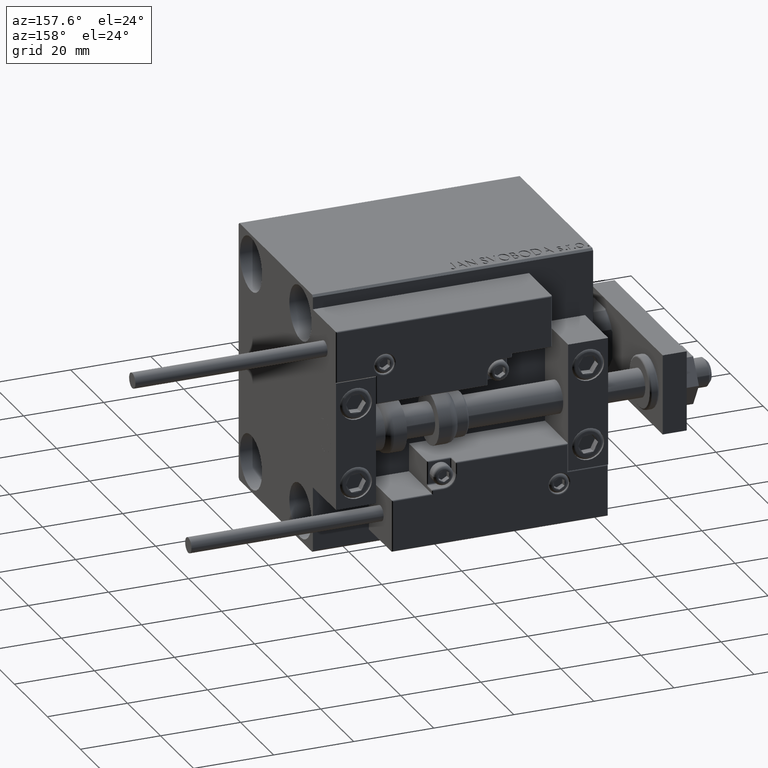
[diagram: clean part render]
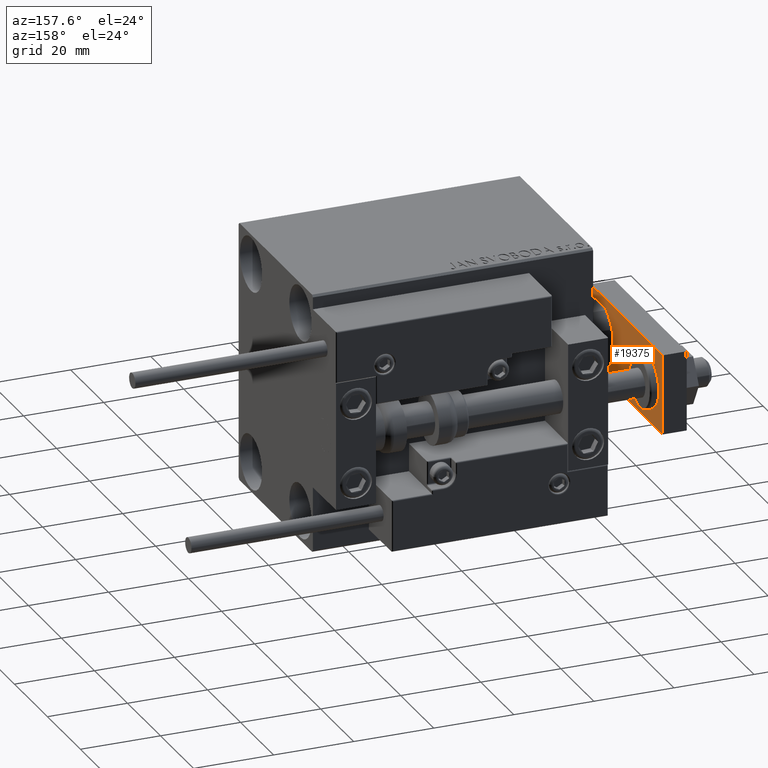
[diagram: same view with one face highlighted and labeled with its STEP entity id]
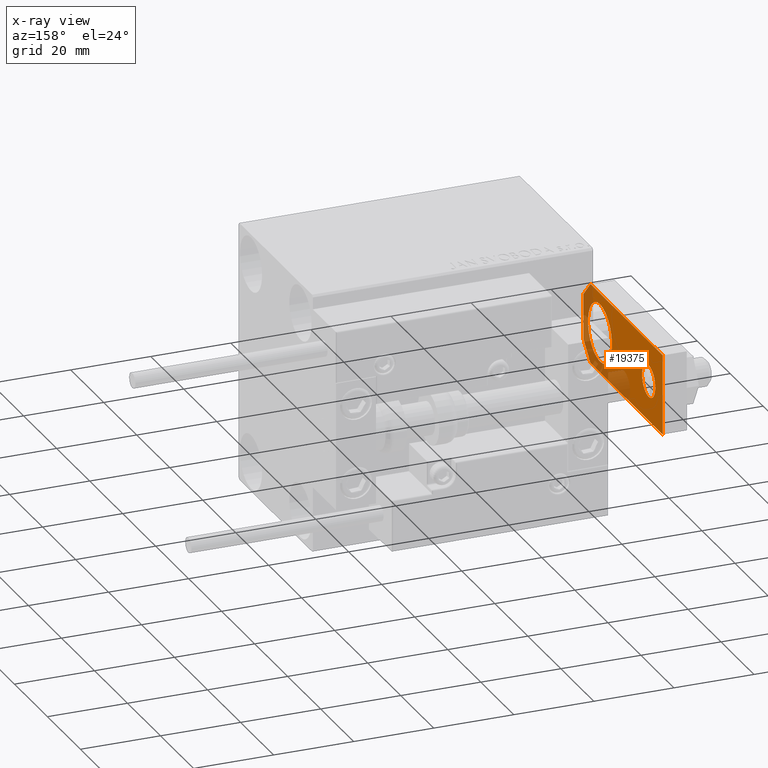
[diagram: x-ray of the same camera — body ghosted, the highlighted face saturated]
A machine part, auxiliary view. The second image highlights one B-rep face of the part: STEP entity #19375.
The next image is the same camera in x-ray: the body ghosted, the highlighted face saturated — about 22% of this face is hidden behind the body in this view.
In plain terms, the highlighted planar face has unit normal (-1, 0, 0).
Its self-contained STEP definition (entity closure, byte-faithful):
#2 = ORIENTED_EDGE ( 'NONE', *, *, #44342, .F. ) ;
#430 = DIRECTION ( 'NONE',  ( 1.000000000000000000, 0.000000000000000000, 0.000000000000000000 ) ) ;
#536 = CARTESIAN_POINT ( 'NONE',  ( 10.00000000000000533, 0.000000000000000000, 0.000000000000000000 ) ) ;
#682 = LINE ( 'NONE', #39623, #41058 ) ;
#685 = DIRECTION ( 'NONE',  ( 0.000000000000000000, 0.000000000000000000, 1.000000000000000000 ) ) ;
#1098 = ORIENTED_EDGE ( 'NONE', *, *, #2373, .T. ) ;
#1143 = DIRECTION ( 'NONE',  ( 1.000000000000000000, 0.000000000000000000, 0.000000000000000000 ) ) ;
#1740 = CARTESIAN_POINT ( 'NONE',  ( 10.00000000000000178, 48.00000000000000000, 0.000000000000000000 ) ) ;
#1789 = DIRECTION ( 'NONE',  ( 0.000000000000000000, 0.000000000000000000, 1.000000000000000000 ) ) ;
#2373 = EDGE_CURVE ( 'NONE', #22527, #31974, #34642, .T. ) ;
#4416 = VERTEX_POINT ( 'NONE', #7362 ) ;
#5549 = EDGE_CURVE ( 'NONE', #30517, #44071, #36603, .T. ) ;
#6729 = AXIS2_PLACEMENT_3D ( 'NONE', #9032, #48231, #1143 ) ;
#7362 = CARTESIAN_POINT ( 'NONE',  ( 10.00000000000000533, 4.239999999999986890, 0.000000000000000000 ) ) ;
#8096 = CARTESIAN_POINT ( 'NONE',  ( 5.759999999999998010, 0.000000000000000000, 0.000000000000000000 ) ) ;
#9032 = CARTESIAN_POINT ( 'NONE',  ( 0.000000000000000000, 0.000000000000000000, 0.000000000000000000 ) ) ;
#9452 = EDGE_CURVE ( 'NONE', #32639, #14585, #18575, .T. ) ;
#9787 = PLANE ( 'NONE',  #6729 ) ;
#11040 = ORIENTED_EDGE ( 'NONE', *, *, #9452, .T. ) ;
#12321 = VERTEX_POINT ( 'NONE', #38543 ) ;
#12497 = DIRECTION ( 'NONE',  ( -7.228014483236695816E-17, 1.000000000000000000, 0.000000000000000000 ) ) ;
#13683 = DIRECTION ( 'NONE',  ( 0.000000000000000000, 0.000000000000000000, 1.000000000000000000 ) ) ;
#14414 = EDGE_LOOP ( 'NONE', ( #43075, #1098 ) ) ;
#14585 = VERTEX_POINT ( 'NONE', #33088 ) ;
#14942 = AXIS2_PLACEMENT_3D ( 'NONE', #24632, #13683, #33009 ) ;
#15009 = VECTOR ( 'NONE', #12497, 1000.000000000000000 ) ;
#15205 = LINE ( 'NONE', #46244, #23959 ) ;
#15510 = CARTESIAN_POINT ( 'NONE',  ( -10.00000000000000000, 48.00000000000000000, 0.000000000000000000 ) ) ;
#15668 = ORIENTED_EDGE ( 'NONE', *, *, #38272, .T. ) ;
#17327 = CARTESIAN_POINT ( 'NONE',  ( -9.629649721936179265E-32, 10.00000000000000178, 0.000000000000000000 ) ) ;
#17830 = DIRECTION ( 'NONE',  ( 0.000000000000000000, 0.000000000000000000, 1.000000000000000000 ) ) ;
#18427 = DIRECTION ( 'NONE',  ( -1.084202172485504434E-16, -1.000000000000000000, 0.000000000000000000 ) ) ;
#18575 = CIRCLE ( 'NONE', #29942, 4.000000000000000888 ) ;
#19375 = ADVANCED_FACE ( 'NONE', ( #44402, #20993, #36512 ), #9787, .F. ) ;
#19695 = CIRCLE ( 'NONE', #14942, 4.000000000000000888 ) ;
#20890 = DIRECTION ( 'NONE',  ( 1.000000000000000000, 0.000000000000000000, 0.000000000000000000 ) ) ;
#20993 = FACE_BOUND ( 'NONE', #43346, .T. ) ;
#21312 = VERTEX_POINT ( 'NONE', #8096 ) ;
#21390 = EDGE_CURVE ( 'NONE', #14585, #32639, #19695, .T. ) ;
#21544 = CARTESIAN_POINT ( 'NONE',  ( -7.250000000000000000, 10.00000000000000178, 0.000000000000000000 ) ) ;
#22527 = VERTEX_POINT ( 'NONE', #28903 ) ;
#23088 = ORIENTED_EDGE ( 'NONE', *, *, #21390, .T. ) ;
#23959 = VECTOR ( 'NONE', #46998, 1000.000000000000000 ) ;
#24440 = VECTOR ( 'NONE', #28226, 1000.000000000000000 ) ;
#24443 = VERTEX_POINT ( 'NONE', #36062 ) ;
#24632 = CARTESIAN_POINT ( 'NONE',  ( -1.432611055310774642E-16, 39.50000000000000000, 0.000000000000000000 ) ) ;
#25013 = CARTESIAN_POINT ( 'NONE',  ( 10.00000000000000178, 48.00000000000000000, 0.000000000000000000 ) ) ;
#27545 = EDGE_CURVE ( 'NONE', #4416, #30517, #39735, .T. ) ;
#28226 = DIRECTION ( 'NONE',  ( -1.000000000000000000, 0.000000000000000000, 0.000000000000000000 ) ) ;
#28903 = CARTESIAN_POINT ( 'NONE',  ( 7.250000000000000000, 10.00000000000000355, 0.000000000000000000 ) ) ;
#29277 = CARTESIAN_POINT ( 'NONE',  ( -1.432611055310774642E-16, 39.50000000000000000, 0.000000000000000000 ) ) ;
#29942 = AXIS2_PLACEMENT_3D ( 'NONE', #29277, #1789, #33330 ) ;
#30517 = VERTEX_POINT ( 'NONE', #25013 ) ;
#31222 = CARTESIAN_POINT ( 'NONE',  ( -9.629649721936179265E-32, 10.00000000000000178, 0.000000000000000000 ) ) ;
#31419 = ORIENTED_EDGE ( 'NONE', *, *, #5549, .F. ) ;
#31546 = EDGE_CURVE ( 'NONE', #31974, #22527, #41108, .T. ) ;
#31974 = VERTEX_POINT ( 'NONE', #21544 ) ;
#32639 = VERTEX_POINT ( 'NONE', #44571 ) ;
#33009 = DIRECTION ( 'NONE',  ( 1.000000000000000000, 0.000000000000000000, 0.000000000000000000 ) ) ;
#33015 = AXIS2_PLACEMENT_3D ( 'NONE', #17327, #17830, #20890 ) ;
#33088 = CARTESIAN_POINT ( 'NONE',  ( -4.000000000000000888, 39.50000000000000000, 0.000000000000000000 ) ) ;
#33330 = DIRECTION ( 'NONE',  ( 1.000000000000000000, 0.000000000000000000, 0.000000000000000000 ) ) ;
#33438 = EDGE_LOOP ( 'NONE', ( #2, #35027, #40366, #31419, #40346, #15668 ) ) ;
#33942 = LINE ( 'NONE', #38012, #35541 ) ;
#34642 = CIRCLE ( 'NONE', #46866, 7.250000000000000000 ) ;
#35027 = ORIENTED_EDGE ( 'NONE', *, *, #45241, .T. ) ;
#35541 = VECTOR ( 'NONE', #18427, 1000.000000000000000 ) ;
#36062 = CARTESIAN_POINT ( 'NONE',  ( -10.00000000000000533, 4.240000000000021529, 0.000000000000000000 ) ) ;
#36512 = FACE_BOUND ( 'NONE', #14414, .T. ) ;
#36603 = LINE ( 'NONE', #1740, #24440 ) ;
#38012 = CARTESIAN_POINT ( 'NONE',  ( -10.00000000000000000, 48.00000000000000000, 0.000000000000000000 ) ) ;
#38272 = EDGE_CURVE ( 'NONE', #4416, #21312, #40987, .T. ) ;
#38543 = CARTESIAN_POINT ( 'NONE',  ( -5.759999999999997122, 0.000000000000000000, 0.000000000000000000 ) ) ;
#39225 = VECTOR ( 'NONE', #46752, 1000.000000000000114 ) ;
#39623 = CARTESIAN_POINT ( 'NONE',  ( -5.759999999999997122, 0.000000000000000000, 0.000000000000000000 ) ) ;
#39735 = LINE ( 'NONE', #536, #15009 ) ;
#40346 = ORIENTED_EDGE ( 'NONE', *, *, #27545, .F. ) ;
#40366 = ORIENTED_EDGE ( 'NONE', *, *, #49544, .F. ) ;
#40987 = LINE ( 'NONE', #41490, #39225 ) ;
#41058 = VECTOR ( 'NONE', #46753, 999.9999999999998863 ) ;
#41108 = CIRCLE ( 'NONE', #33015, 7.250000000000000000 ) ;
#41490 = CARTESIAN_POINT ( 'NONE',  ( 10.00000000000000533, 4.239999999999986890, 0.000000000000000000 ) ) ;
#43075 = ORIENTED_EDGE ( 'NONE', *, *, #31546, .T. ) ;
#43346 = EDGE_LOOP ( 'NONE', ( #23088, #11040 ) ) ;
#44071 = VERTEX_POINT ( 'NONE', #15510 ) ;
#44342 = EDGE_CURVE ( 'NONE', #12321, #21312, #15205, .T. ) ;
#44402 = FACE_OUTER_BOUND ( 'NONE', #33438, .T. ) ;
#44571 = CARTESIAN_POINT ( 'NONE',  ( 4.000000000000000888, 39.50000000000000000, 0.000000000000000000 ) ) ;
#45241 = EDGE_CURVE ( 'NONE', #12321, #24443, #682, .T. ) ;
#46244 = CARTESIAN_POINT ( 'NONE',  ( -10.00000000000000533, 0.000000000000000000, 0.000000000000000000 ) ) ;
#46752 = DIRECTION ( 'NONE',  ( -0.7071067811865492381, -0.7071067811865457964, -0.000000000000000000 ) ) ;
#46753 = DIRECTION ( 'NONE',  ( -0.7071067811865464625, 0.7071067811865486830, -0.000000000000000000 ) ) ;
#46866 = AXIS2_PLACEMENT_3D ( 'NONE', #31222, #685, #430 ) ;
#46998 = DIRECTION ( 'NONE',  ( 1.000000000000000000, 0.000000000000000000, 0.000000000000000000 ) ) ;
#48231 = DIRECTION ( 'NONE',  ( -0.000000000000000000, 0.000000000000000000, 1.000000000000000000 ) ) ;
#49544 = EDGE_CURVE ( 'NONE', #44071, #24443, #33942, .T. ) ;